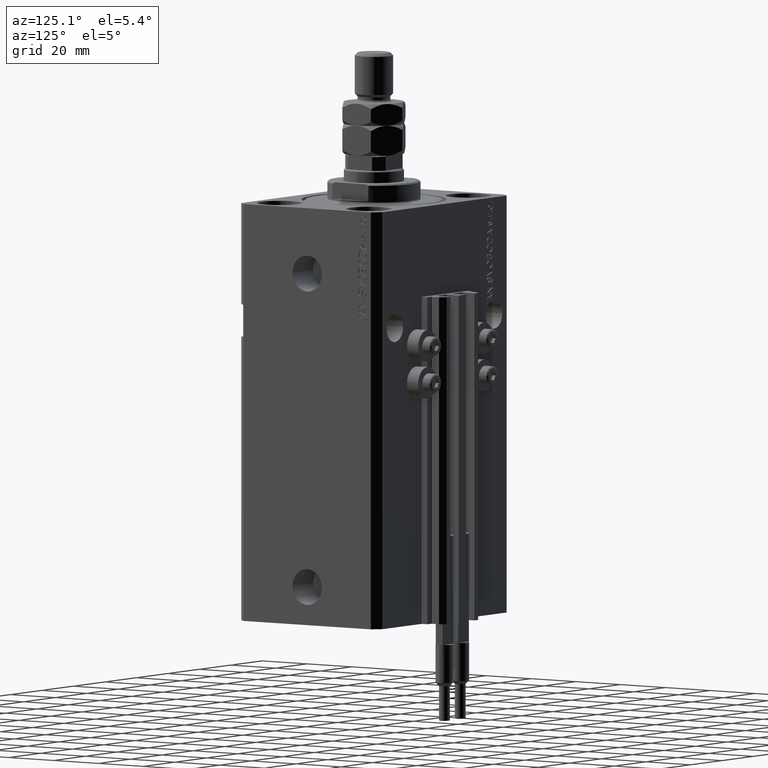
[diagram: clean part render]
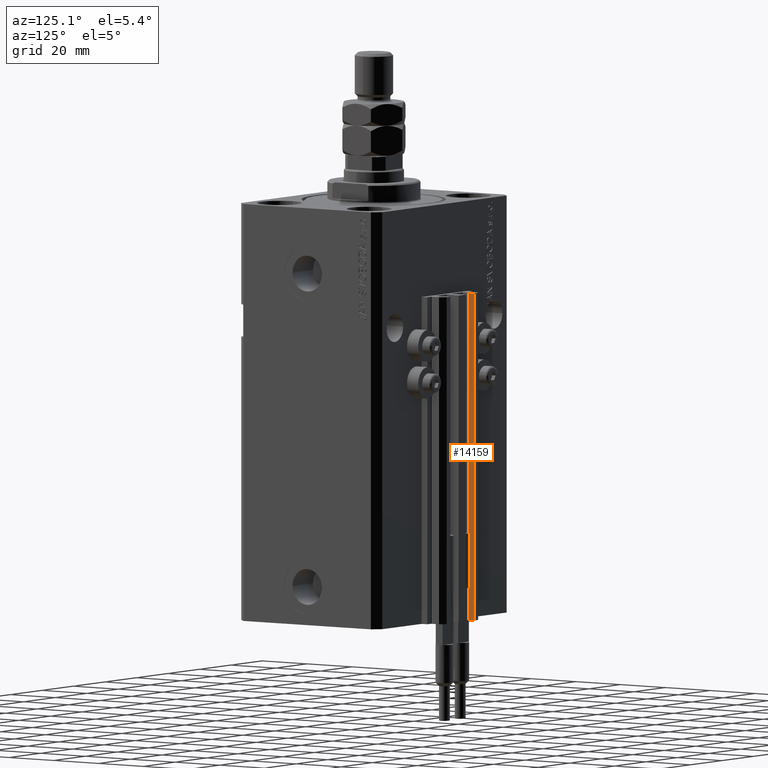
[diagram: same view with one face highlighted and labeled with its STEP entity id]
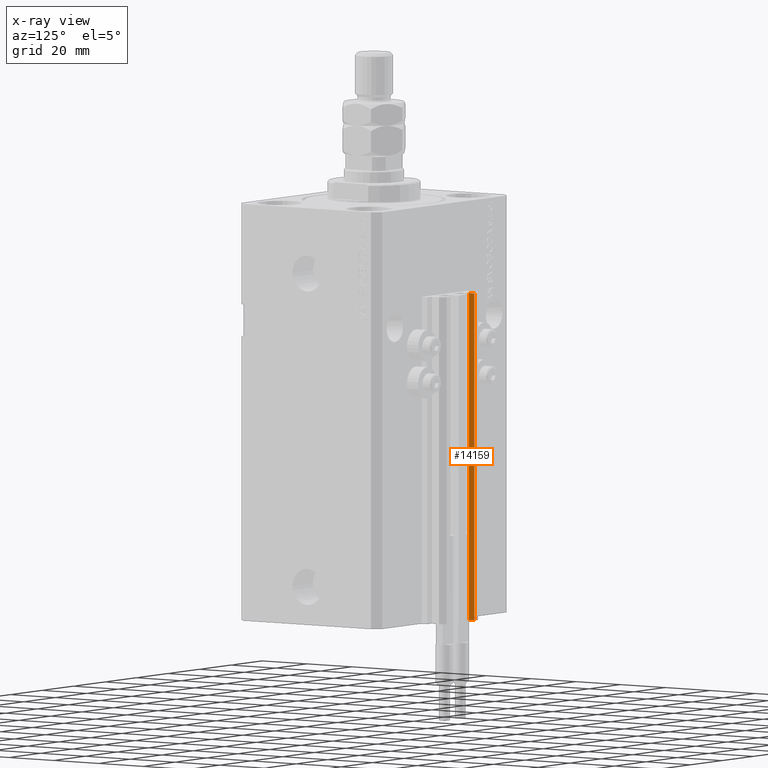
[diagram: x-ray of the same camera — body ghosted, the highlighted face saturated]
A machine part, auxiliary view. The second image highlights one B-rep face of the part: STEP entity #14159.
The next image is the same camera in x-ray: the body ghosted, the highlighted face saturated — about 0% of this face is hidden behind the body in this view.
In plain terms, the highlighted planar face has unit normal (1, 0, 0).
Its self-contained STEP definition (entity closure, byte-faithful):
#1406 = LINE ( 'NONE', #8796, #5791 ) ;
#1512 = AXIS2_PLACEMENT_3D ( 'NONE', #18403, #33982, #30151 ) ;
#2567 = FACE_OUTER_BOUND ( 'NONE', #21588, .T. ) ;
#2737 = VECTOR ( 'NONE', #22122, 1000.000000000000000 ) ;
#3750 = VERTEX_POINT ( 'NONE', #4294 ) ;
#4294 = CARTESIAN_POINT ( 'NONE',  ( -7.650000000000002132, 37.09999999999999432, -153.0000000000000000 ) ) ;
#5036 = DIRECTION ( 'NONE',  ( 0.000000000000000000, 1.000000000000000000, 0.000000000000000000 ) ) ;
#5791 = VECTOR ( 'NONE', #32816, 1000.000000000000000 ) ;
#6351 = ORIENTED_EDGE ( 'NONE', *, *, #47736, .T. ) ;
#6534 = CARTESIAN_POINT ( 'NONE',  ( -7.650000000000002132, 37.09999999999999432, -153.0000000000000000 ) ) ;
#6789 = LINE ( 'NONE', #6534, #2737 ) ;
#8796 = CARTESIAN_POINT ( 'NONE',  ( -7.650000000000002132, 39.49999999999999289, -153.0000000000000000 ) ) ;
#9370 = CARTESIAN_POINT ( 'NONE',  ( -7.650000000000002132, 37.09999999999999432, -153.0000000000000000 ) ) ;
#9552 = EDGE_CURVE ( 'NONE', #3750, #27589, #36707, .T. ) ;
#13115 = ORIENTED_EDGE ( 'NONE', *, *, #29267, .F. ) ;
#13259 = VECTOR ( 'NONE', #45319, 1000.000000000000000 ) ;
#14159 = ADVANCED_FACE ( 'NONE', ( #2567 ), #45733, .T. ) ;
#18403 = CARTESIAN_POINT ( 'NONE',  ( -7.650000000000002132, 37.09999999999999432, -153.0000000000000000 ) ) ;
#20461 = VERTEX_POINT ( 'NONE', #33104 ) ;
#21588 = EDGE_LOOP ( 'NONE', ( #42214, #13115, #49528, #6351 ) ) ;
#22122 = DIRECTION ( 'NONE',  ( 0.000000000000000000, 0.000000000000000000, 1.000000000000000000 ) ) ;
#22930 = EDGE_CURVE ( 'NONE', #28451, #20461, #49156, .T. ) ;
#27589 = VERTEX_POINT ( 'NONE', #35307 ) ;
#28451 = VERTEX_POINT ( 'NONE', #28907 ) ;
#28907 = CARTESIAN_POINT ( 'NONE',  ( -7.650000000000002132, 37.09999999999999432, -33.00000000000000000 ) ) ;
#29267 = EDGE_CURVE ( 'NONE', #3750, #28451, #6789, .T. ) ;
#30151 = DIRECTION ( 'NONE',  ( 0.000000000000000000, 0.000000000000000000, -1.000000000000000000 ) ) ;
#32816 = DIRECTION ( 'NONE',  ( 0.000000000000000000, 0.000000000000000000, 1.000000000000000000 ) ) ;
#33104 = CARTESIAN_POINT ( 'NONE',  ( -7.650000000000002132, 39.49999999999999289, -33.00000000000000000 ) ) ;
#33982 = DIRECTION ( 'NONE',  ( 1.000000000000000000, 0.000000000000000000, 0.000000000000000000 ) ) ;
#34794 = VECTOR ( 'NONE', #5036, 1000.000000000000000 ) ;
#35307 = CARTESIAN_POINT ( 'NONE',  ( -7.650000000000002132, 39.49999999999999289, -153.0000000000000000 ) ) ;
#36707 = LINE ( 'NONE', #9370, #34794 ) ;
#42214 = ORIENTED_EDGE ( 'NONE', *, *, #22930, .F. ) ;
#45319 = DIRECTION ( 'NONE',  ( 0.000000000000000000, 1.000000000000000000, 0.000000000000000000 ) ) ;
#45733 = PLANE ( 'NONE',  #1512 ) ;
#47736 = EDGE_CURVE ( 'NONE', #27589, #20461, #1406, .T. ) ;
#48911 = CARTESIAN_POINT ( 'NONE',  ( -7.650000000000002132, 37.09999999999999432, -33.00000000000000000 ) ) ;
#49156 = LINE ( 'NONE', #48911, #13259 ) ;
#49528 = ORIENTED_EDGE ( 'NONE', *, *, #9552, .T. ) ;